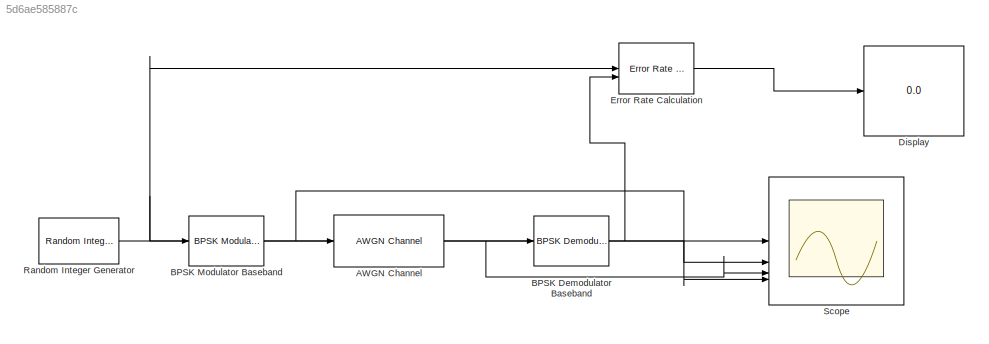
MODEL slx_5d6ae585887c
KIND model
CONFIG AbsTol = auto
CONFIG EnableMultiTasking = off
CONFIG FixedStep = auto
CONFIG MaxStep = auto
CONFIG MinStep = auto
CONFIG RelTol = 1e-3
CONFIG SampleTimeConstraint = Unconstrained
CONFIG SolverName = VariableStepAuto
CONFIG StartTime = 0.0
CONFIG StopTime = 50.0
BLOCK [Reference] AWGN Channel  REF=commchan3/AWGN
Channel
  SourceBlock = commchan3/AWGN\nChannel
  SourceType = AWGN Channel
BLOCK [Reference] BPSK Demodulator Baseband  REF=commdigbbndpm3/BPSK
Demodulator
Baseband
  LibrarySourceBlock = commhdldigbbndpm/BPSK\nDemodulator\nBaseband
  SourceBlock = commdigbbndpm3/BPSK\nDemodulator\nBaseband
  SourceType = BPSK Demodulator Baseband
BLOCK [Reference] BPSK Modulator Baseband  REF=commdigbbndpm3/BPSK
Modulator
Baseband
  SourceBlock = commdigbbndpm3/BPSK\nModulator\nBaseband
  SourceType = BPSK Modulator Baseband
BLOCK [Display] Display
  Decimation = 1
BLOCK [Reference] Error Rate Calculation  REF=commsink2/Error Rate
Calculation
  SourceBlock = commsink2/Error Rate\nCalculation
  SourceType = Error Rate Calculation
BLOCK [Reference] Random Integer Generator  REF=commrandsrc3/Random Integer
Generator
  SourceBlock = commrandsrc3/Random Integer\nGenerator
  SourceType = Random Integer Generator
BLOCK [Scope] Scope
  Floating = off
  NumInputPorts = 4
  ScopeSpecificationString = Simulink.scopes.TimeScopeBlockCfg('CurrentConfiguration', extmgr.ConfigurationSet(extmgr.Configuration('Core','General UI',true),extmgr.Configuration('Core','Source UI',true),extmgr.Configuration('Sources','WiredSimulink',true),extmgr.Configuration('Visuals','Time Domain',true,'SerializedDisplays',{struct('MinYLimReal','-0.125','MaxYLimReal','1.125','YLabelReal','','MinYLimMag','0.00000','MaxYLimM...<+3439ch>
NET AWGN Channel:1 -> BPSK Demodulator Baseband:1, Scope:3
NET BPSK Demodulator Baseband:1 -> Error Rate Calculation:2, Scope:4
NET BPSK Modulator Baseband:1 -> AWGN Channel:1, Scope:2
LINE Error Rate Calculation:1 -> Display:1
NET Random Integer Generator:1 -> BPSK Modulator Baseband:1, Error Rate Calculation:1, Scope:1
note: NET lines group one-source signal fan-out (src -> all destinations, sorted); 1:1 wires keep LINE
